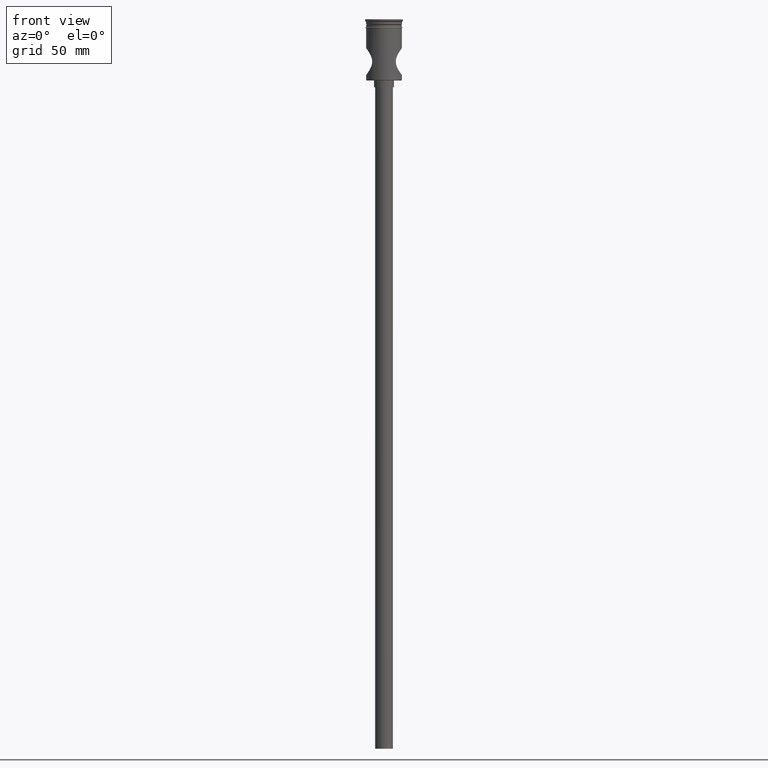
[diagram: clean part render]
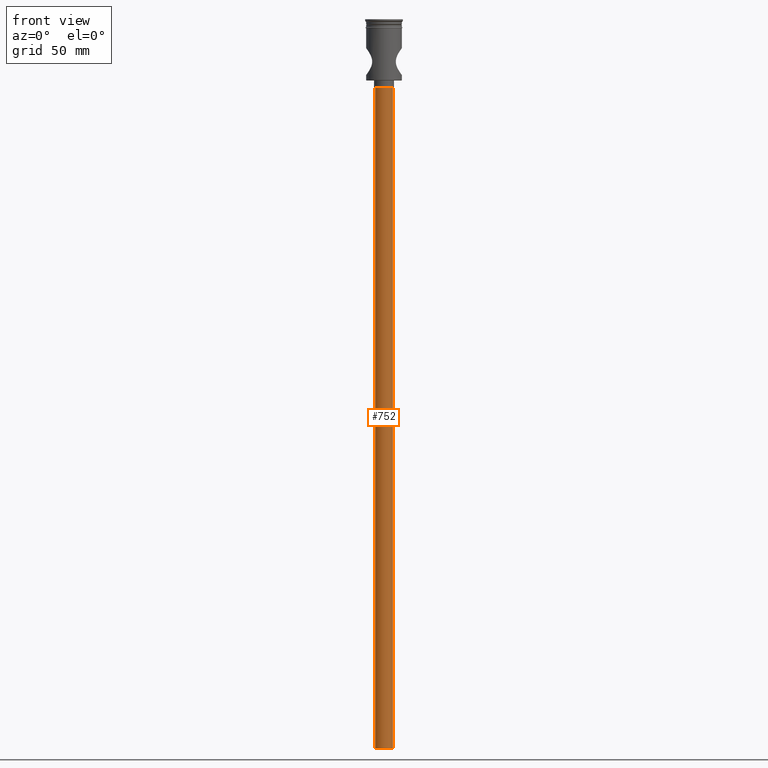
[diagram: same view with one face highlighted and labeled with its STEP entity id]
A machine part, front view. The second image highlights one B-rep face of the part: STEP entity #752.
In plain terms, the highlighted cylindrical surface (edge-blend (fillet) strip) has radius 4 mm, axis along (-0, -0, 1).
Its self-contained STEP definition (entity closure, byte-faithful):
#43 = DIRECTION ( 'NONE',  ( 0.000000000000000000, 0.000000000000000000, -1.000000000000000000 ) ) ;
#91 = EDGE_CURVE ( 'NONE', #1413, #1164, #1499, .T. ) ;
#113 = DIRECTION ( 'NONE',  ( 1.000000000000000000, 0.000000000000000000, 0.000000000000000000 ) ) ;
#158 = DIRECTION ( 'NONE',  ( -1.000000000000000000, 0.000000000000000000, 0.000000000000000000 ) ) ;
#230 = CARTESIAN_POINT ( 'NONE',  ( 4.000000000000000000, 0.000000000000000000, -327.5000000000000000 ) ) ;
#255 = ORIENTED_EDGE ( 'NONE', *, *, #1372, .T. ) ;
#266 = LINE ( 'NONE', #745, #267 ) ;
#267 = VECTOR ( 'NONE', #503, 1000.000000000000000 ) ;
#269 = EDGE_CURVE ( 'NONE', #1164, #1032, #266, .T. ) ;
#277 = CARTESIAN_POINT ( 'NONE',  ( -4.000000000000000000, 4.898587196589412829E-16, -327.5000000000000000 ) ) ;
#285 = ORIENTED_EDGE ( 'NONE', *, *, #91, .F. ) ;
#301 = CARTESIAN_POINT ( 'NONE',  ( 0.000000000000000000, 0.000000000000000000, -327.5000000000000000 ) ) ;
#398 = EDGE_LOOP ( 'NONE', ( #1179, #285, #255, #1230 ) ) ;
#403 = CARTESIAN_POINT ( 'NONE',  ( 0.000000000000000000, 0.000000000000000000, -30.50000000000000000 ) ) ;
#458 = DIRECTION ( 'NONE',  ( -0.000000000000000000, -0.000000000000000000, 1.000000000000000000 ) ) ;
#475 = VERTEX_POINT ( 'NONE', #961 ) ;
#503 = DIRECTION ( 'NONE',  ( -0.000000000000000000, -0.000000000000000000, 1.000000000000000000 ) ) ;
#611 = EDGE_CURVE ( 'NONE', #475, #1032, #1333, .T. ) ;
#745 = CARTESIAN_POINT ( 'NONE',  ( -4.000000000000000000, 4.898587196589412829E-16, -327.5000000000000000 ) ) ;
#752 = ADVANCED_FACE ( 'NONE', ( #899 ), #1476, .T. ) ;
#765 = AXIS2_PLACEMENT_3D ( 'NONE', #1368, #777, #113 ) ;
#775 = CARTESIAN_POINT ( 'NONE',  ( -4.000000000000000000, 4.898587196589412829E-16, -30.50000000000000000 ) ) ;
#777 = DIRECTION ( 'NONE',  ( -0.000000000000000000, -0.000000000000000000, 1.000000000000000000 ) ) ;
#820 = VECTOR ( 'NONE', #458, 1000.000000000000000 ) ;
#899 = FACE_OUTER_BOUND ( 'NONE', #398, .T. ) ;
#961 = CARTESIAN_POINT ( 'NONE',  ( 4.000000000000000000, 0.000000000000000000, -30.50000000000000000 ) ) ;
#969 = AXIS2_PLACEMENT_3D ( 'NONE', #403, #43, #158 ) ;
#1032 = VERTEX_POINT ( 'NONE', #775 ) ;
#1164 = VERTEX_POINT ( 'NONE', #277 ) ;
#1176 = LINE ( 'NONE', #230, #820 ) ;
#1179 = ORIENTED_EDGE ( 'NONE', *, *, #269, .F. ) ;
#1230 = ORIENTED_EDGE ( 'NONE', *, *, #611, .T. ) ;
#1265 = DIRECTION ( 'NONE',  ( -1.000000000000000000, 0.000000000000000000, 0.000000000000000000 ) ) ;
#1333 = CIRCLE ( 'NONE', #969, 4.000000000000000000 ) ;
#1354 = DIRECTION ( 'NONE',  ( 0.000000000000000000, 0.000000000000000000, -1.000000000000000000 ) ) ;
#1368 = CARTESIAN_POINT ( 'NONE',  ( 0.000000000000000000, 0.000000000000000000, -327.5000000000000000 ) ) ;
#1372 = EDGE_CURVE ( 'NONE', #1413, #475, #1176, .T. ) ;
#1413 = VERTEX_POINT ( 'NONE', #1435 ) ;
#1435 = CARTESIAN_POINT ( 'NONE',  ( 4.000000000000000000, 0.000000000000000000, -327.5000000000000000 ) ) ;
#1476 = CYLINDRICAL_SURFACE ( 'NONE', #765, 4.000000000000000000 ) ;
#1499 = CIRCLE ( 'NONE', #1521, 4.000000000000000000 ) ;
#1521 = AXIS2_PLACEMENT_3D ( 'NONE', #301, #1354, #1265 ) ;